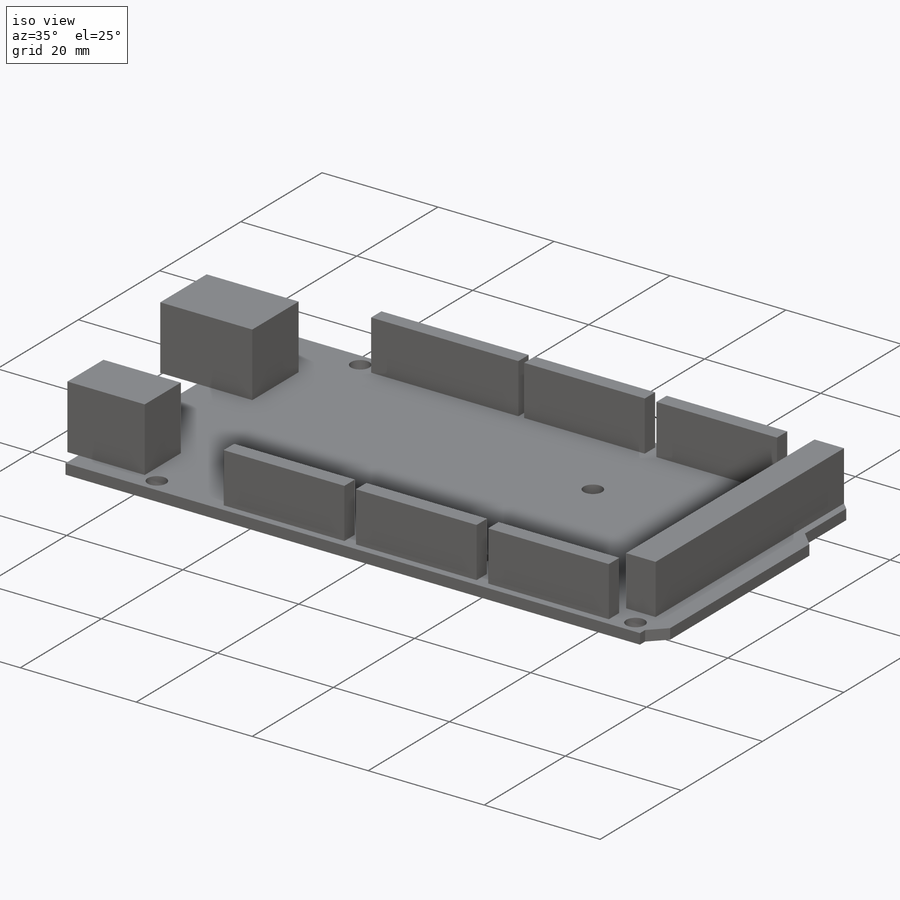
[diagram: iso view]
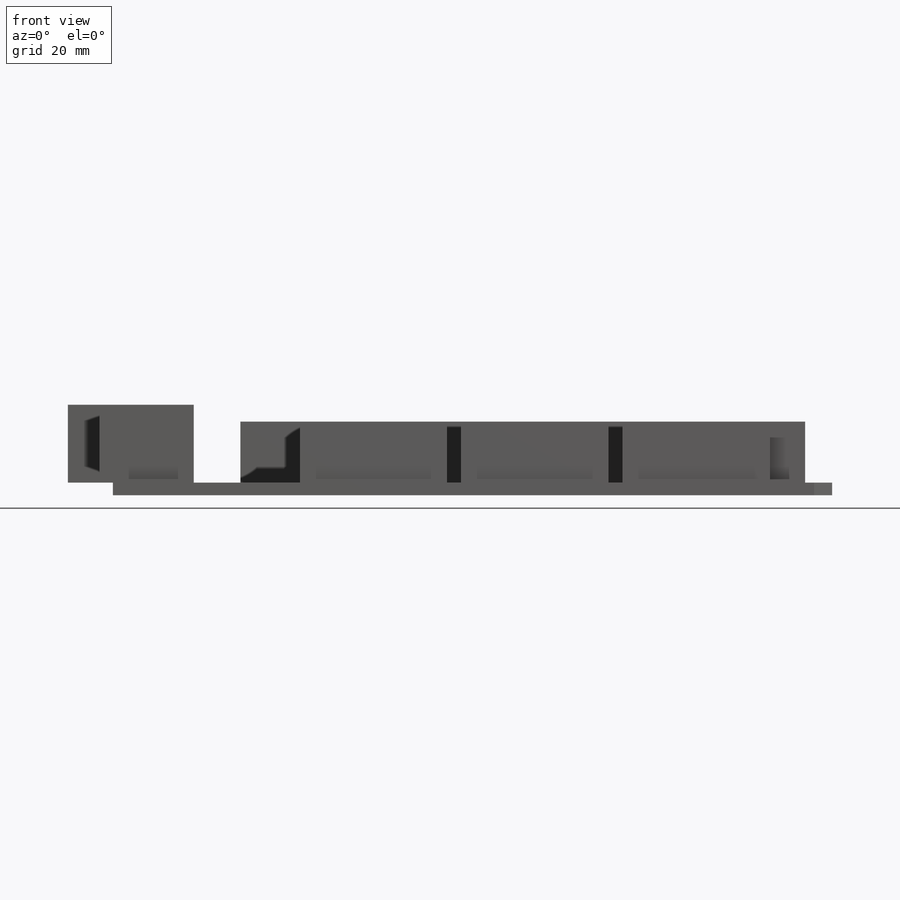
[diagram: front view]
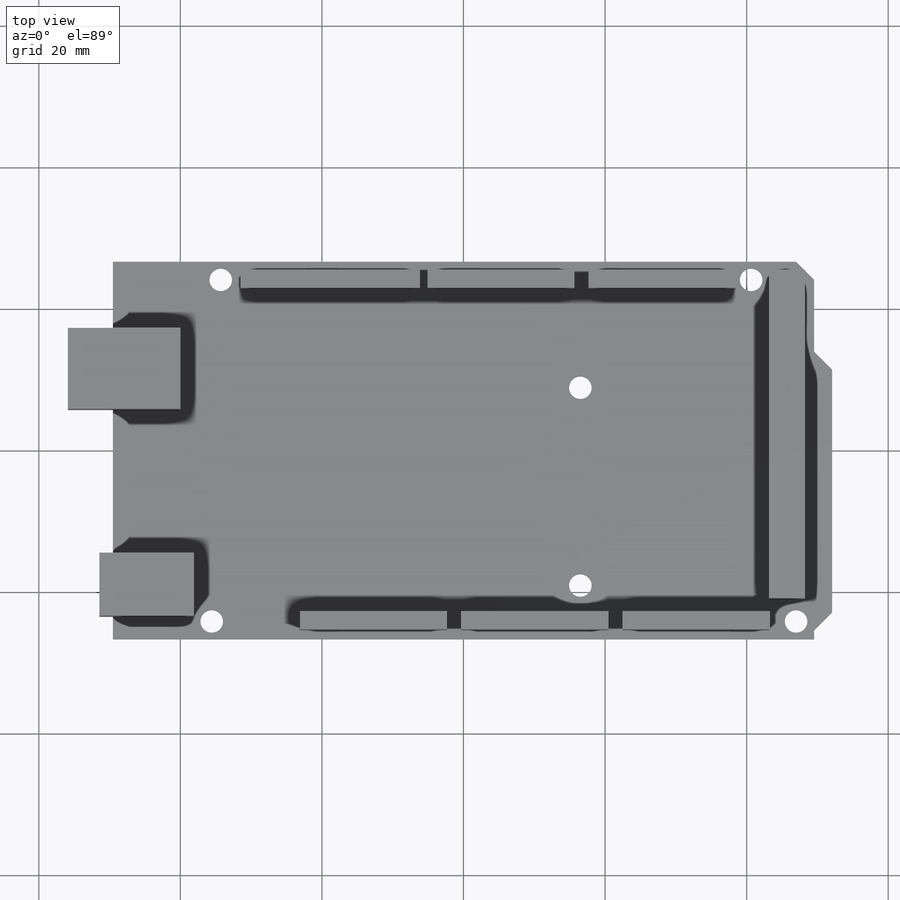
[diagram: top view]
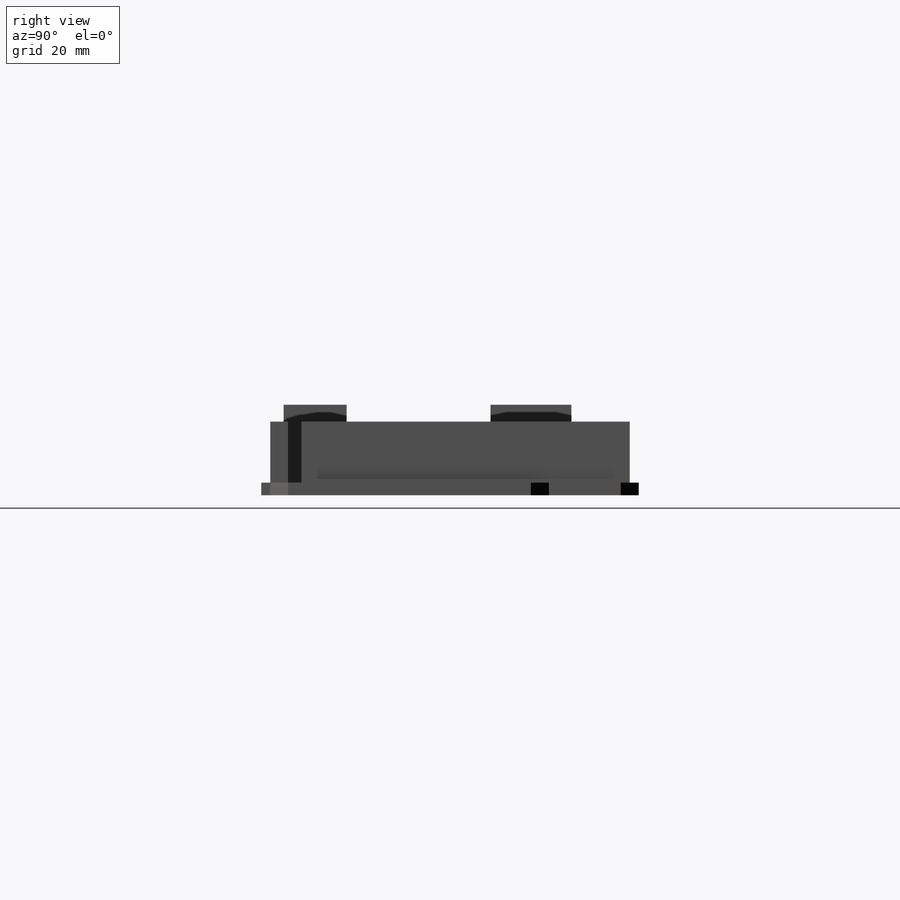
[diagram: right view]
SOLIDWORKS PART (.sldprt)
format: sldprt  version: not decoded by parser v0  size: 306,176 bytes
history: native  units: mm
features: sketch x5, extrude x4, material x1, cut_extrude x1 (+13 scaffold rows collapsed)
feature tree (24):
  scaffold x13  (default folders/planes/origin — collapsed)
  material  "Material <not specified>"
  sketch  "Sketch1"  dims[c1.D1=53.34mm c1.D2=53.34mm c2.D2=~148.27228deg c3.D2=101.6mm c3.D3=99.06mm c3.D4=1.27mm c3.D5=2.54mm c3.D6=96.52mm c3.D7=34.29mm]
  extrude  "Boss-Extrude1"  Depth=1.8mm
  sketch  "Sketch2"  dims[D1=3.2mm D2=2.54mm D3=13.97mm D4=1.27mm D5=5.08mm D6=50.8mm D7=27.94mm D8=15.24mm D9=24.13mm D10=96.52mm]
  cut_extrude  "Cut-Extrude1"  [1 undecoded]
  sketch  "Sketch3"  dims[D1=11.43mm D2=15.875mm D3=6.35mm D4=32.385mm D5=3.175mm D6=1.905mm D7=8.89mm D8=11.43mm]
  extrude  "Boss-Extrude2"  Depth=11mm
  sketch  "Sketch4"  dims[D1=8.89mm D2=13.335mm D3=1.905mm D4=3.175mm]
  extrude  "Boss-Extrude3"  Depth=11mm
  sketch  "Sketch5"  dims[c1.D1=2.54mm c1.D2=20.8mm c1.D3=26.4mm c1.D4=1.34mm c1.D5=2.0mm c1.D6=2.0mm c1.D7=5.08mm c1.D8=46.4mm c1.D9=3.75mm c1.D10=2.54mm c2.D4=2.54mm c2.D11=1.27mm c2.D9=1.27mm c2.D12=4.7mm c2.D13=2.0mm c2.D14=1.0mm c2.D15=25.4mm]
  extrude  "Boss-Extrude4"  Depth=8.6mm
decode coverage: 9 of 10 modeling features carry decoded parameters
note: ~ marks probable driven/reference dimensions
note: 1 parameter value undecoded
note: suppression state not decoded; provenance and decode notes live in map.json
